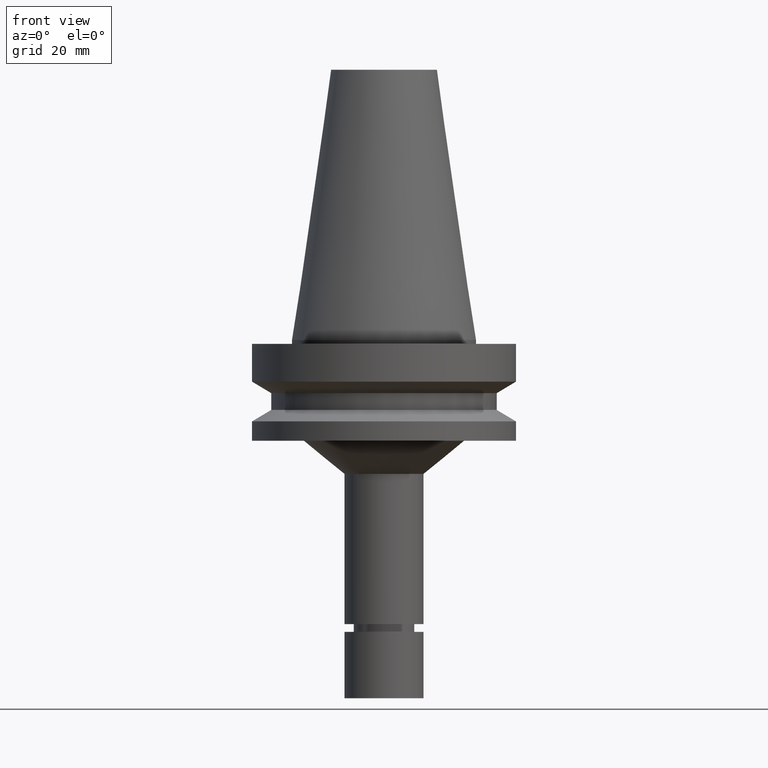
[diagram: clean part render]
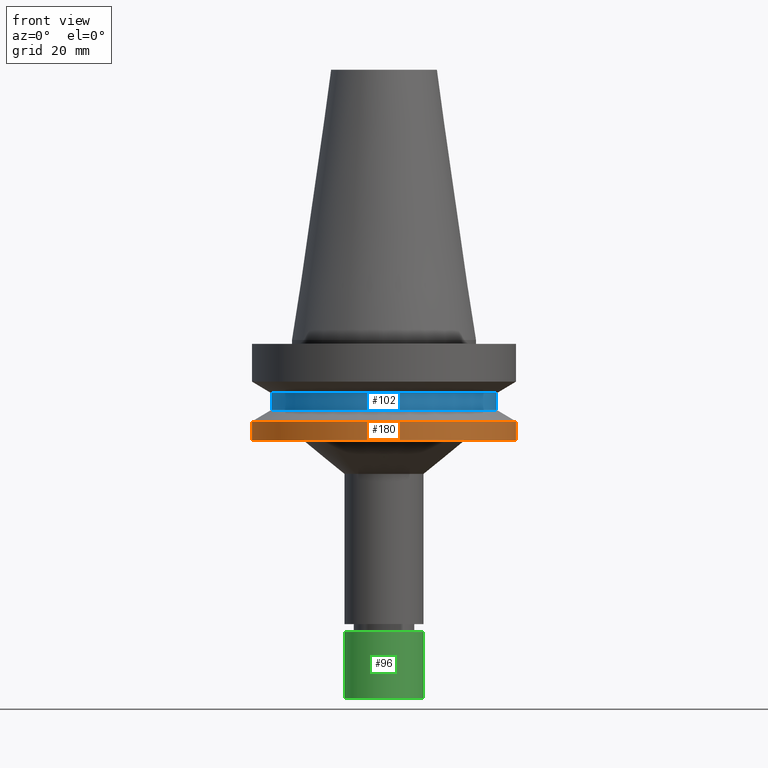
[diagram: same view with three faces highlighted in distinct colors, each labeled with its STEP entity id]
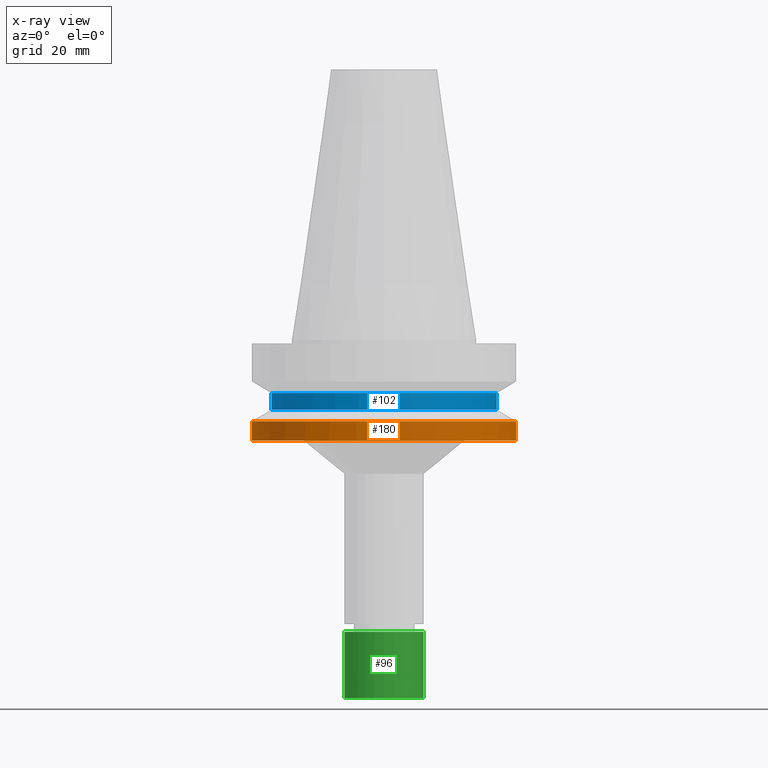
[diagram: x-ray of the same camera — body ghosted, the three highlighted faces saturated]
A machine part, front view with three faces highlighted in distinct colors.
The next image is the same camera in x-ray (body ghosted, the three faces saturated) — at least one of them is partly hidden behind the body in this view.
Their STEP definitions:

[orange] entity #180 — the highlighted cylindrical surface (bore or boss wall) has radius 50 mm, axis along (-0, -0, 1).
#90=EDGE_CURVE('Unnamed[1]',#224,#224,#225,.T.);
#139=EDGE_CURVE('Unnamed[1]',#298,#298,#299,.T.);
#180=ADVANCED_FACE('Unnamed[1]',(#361,#362),#363,.T.);
#224=VERTEX_POINT('',#406);
#225=CIRCLE('',#407,50.0);
#298=VERTEX_POINT('',#496);
#299=CIRCLE('',#497,50.0);
#361=FACE_BOUND('',#576,.T.);
#362=FACE_BOUND('',#577,.T.);
#363=CYLINDRICAL_SURFACE('',#578,50.0);
#406=CARTESIAN_POINT('',(1.87983283669119E-015,50.0,-30.7000000000001));
#407=AXIS2_PLACEMENT_3D('',#606,#607,#608);
#496=CARTESIAN_POINT('',(2.32682891837996E-015,50.0,-37.9999999999998));
#497=AXIS2_PLACEMENT_3D('',#687,#688,#689);
#576=EDGE_LOOP('',(#756));
#577=EDGE_LOOP('',(#757));
#578=AXIS2_PLACEMENT_3D('',#758,#759,#760);
#606=CARTESIAN_POINT('',(1.87983283669119E-015,1.50481078844377E-014,-30.7000000000001));
#607=DIRECTION('',(-6.12323399573677E-017,-1.52619998477039E-017,1.0));
#608=DIRECTION('',(-5.76168069386964E-033,1.0,1.52619998477039E-017));
#687=CARTESIAN_POINT('',(2.32682891837996E-015,1.51595204833261E-014,-37.9999999999998));
#688=DIRECTION('',(-6.12323399573677E-017,-1.52619998477039E-017,1.0));
#689=DIRECTION('',(-5.76168069387682E-033,1.0,1.52619998477039E-017));
#756=ORIENTED_EDGE('',*,*,#90,.F.);
#757=ORIENTED_EDGE('',*,*,#139,.T.);
#758=CARTESIAN_POINT('',(2.10333087753558E-015,1.51038141838819E-014,-34.3499999999999));
#759=DIRECTION('',(-6.12323399573677E-017,-1.52619998477039E-017,1.0));
#760=DIRECTION('',(-5.76168069386964E-033,1.0,1.52619998477039E-017));

[blue] entity #102 — the highlighted cylindrical surface (bore or boss wall) has radius 42.5 mm, axis along (-0, -0, 1).
#102=ADVANCED_FACE('Unnamed[1]',(#243,#244),#245,.T.);
#131=EDGE_CURVE('Unnamed[1]',#286,#286,#287,.T.);
#143=EDGE_CURVE('Unnamed[1]',#304,#304,#305,.T.);
#243=FACE_BOUND('',#429,.T.);
#244=FACE_BOUND('',#430,.T.);
#245=CYLINDRICAL_SURFACE('',#431,42.5);
#286=VERTEX_POINT('',#481);
#287=CIRCLE('',#482,42.5);
#304=VERTEX_POINT('',#504);
#305=CIRCLE('',#505,42.5);
#429=EDGE_LOOP('',(#628));
#430=EDGE_LOOP('',(#629));
#431=AXIS2_PLACEMENT_3D('',#630,#631,#632);
#481=CARTESIAN_POINT('',(1.2264915470779E-015,42.5,-20.03012702));
#482=AXIS2_PLACEMENT_3D('',#673,#674,#675);
#504=CARTESIAN_POINT('',(1.61468902694397E-015,42.5,-26.3698729800001));
#505=AXIS2_PLACEMENT_3D('',#693,#694,#695);
#628=ORIENTED_EDGE('',*,*,#131,.F.);
#629=ORIENTED_EDGE('',*,*,#143,.T.);
#630=CARTESIAN_POINT('',(1.42059028701093E-015,1.49336428855797E-014,-23.2));
#631=DIRECTION('',(-6.12323399573677E-017,-1.52619998477571E-017,1.0));
#632=DIRECTION('',(-5.76168069387344E-033,1.0,1.52619998477571E-017));
#673=CARTESIAN_POINT('',(1.2264915470779E-015,1.48852642846416E-014,-20.03012702));
#674=DIRECTION('',(-6.12323399573677E-017,-1.52619998477571E-017,1.0));
#675=DIRECTION('',(-5.76168069387344E-033,1.0,1.52619998477571E-017));
#693=CARTESIAN_POINT('',(1.61468902694397E-015,1.49820214865177E-014,-26.3698729800001));
#694=DIRECTION('',(-6.12323399573677E-017,-1.52619998477571E-017,1.0));
#695=DIRECTION('',(-5.76168069387344E-033,1.0,1.52619998477571E-017));

[green] entity #96 — the highlighted cylindrical surface (bore or boss wall) has radius 15 mm, axis along (0, 0, -1).
#96=ADVANCED_FACE('Unnamed[1]',(#233,#234),#235,.T.);
#141=EDGE_CURVE('Unnamed[1]',#301,#301,#302,.T.);
#175=EDGE_CURVE('Unnamed[1]',#354,#354,#355,.T.);
#233=FACE_BOUND('',#417,.T.);
#234=FACE_BOUND('',#418,.T.);
#235=CYLINDRICAL_SURFACE('',#419,15.0);
#301=VERTEX_POINT('',#500);
#302=CIRCLE('',#501,15.0000000000001);
#354=VERTEX_POINT('',#567);
#355=CIRCLE('',#568,15.0);
#417=EDGE_LOOP('',(#616));
#418=EDGE_LOOP('',(#617));
#419=AXIS2_PLACEMENT_3D('',#618,#619,#620);
#500=CARTESIAN_POINT('',(6.73555739531044E-015,15.0000000000001,-110.0));
#501=AXIS2_PLACEMENT_3D('',#690,#691,#692);
#567=CARTESIAN_POINT('',(8.26636589424463E-015,15.0,-135.0));
#568=AXIS2_PLACEMENT_3D('',#749,#750,#751);
#616=ORIENTED_EDGE('',*,*,#175,.F.);
#617=ORIENTED_EDGE('',*,*,#141,.T.);
#618=CARTESIAN_POINT('',(7.50096164477754E-015,1.64491594704596E-014,-122.5));
#619=DIRECTION('',(6.12323399573677E-017,1.52619998477336E-017,-1.0));
#620=DIRECTION('',(-5.76168069387474E-033,1.0,1.52619998477336E-017));
#690=CARTESIAN_POINT('',(6.73555739531044E-015,1.62583844723629E-014,-110.0));
#691=DIRECTION('',(6.12323399573677E-017,1.52619998477336E-017,-1.0));
#692=DIRECTION('',(-5.76168069387474E-033,1.0,1.52619998477336E-017));
#749=CARTESIAN_POINT('',(8.26636589424463E-015,1.66399344685563E-014,-135.0));
#750=DIRECTION('',(6.12323399573677E-017,1.52619998477336E-017,-1.0));
#751=DIRECTION('',(-5.76168069387474E-033,1.0,1.52619998477336E-017));